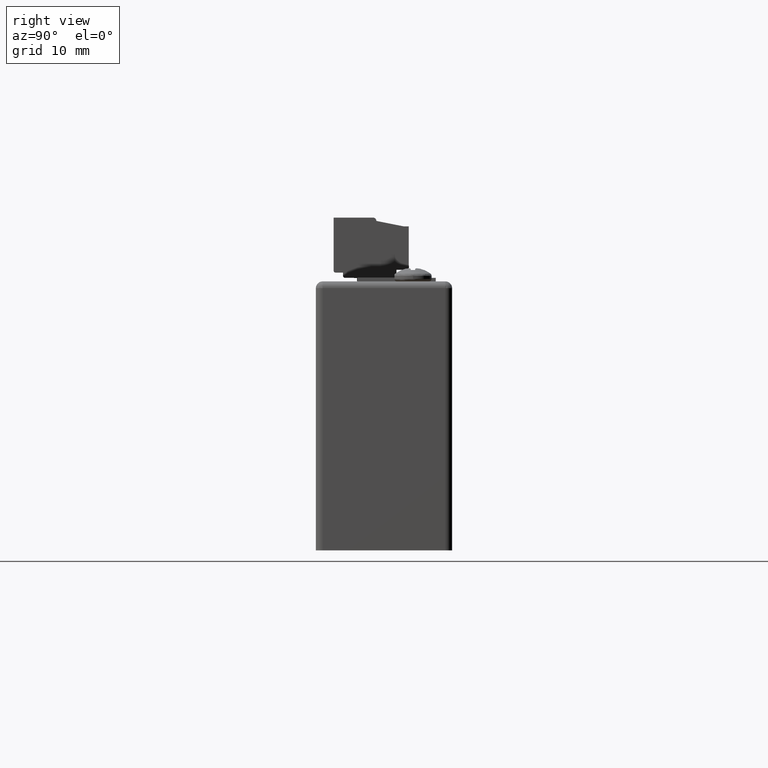
[diagram: clean part render]
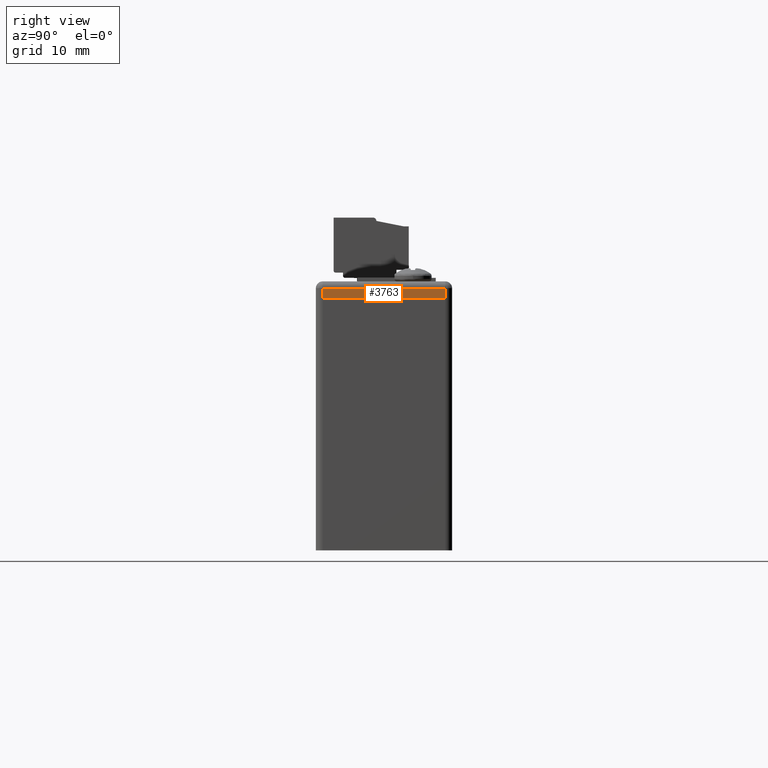
[diagram: same view with one face highlighted and labeled with its STEP entity id]
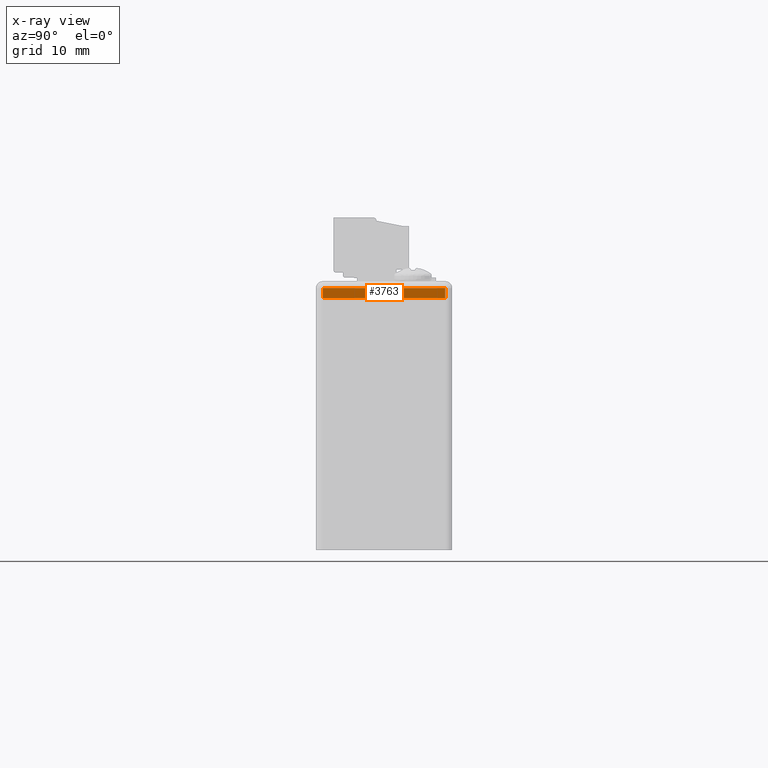
[diagram: x-ray of the same camera — body ghosted, the highlighted face saturated]
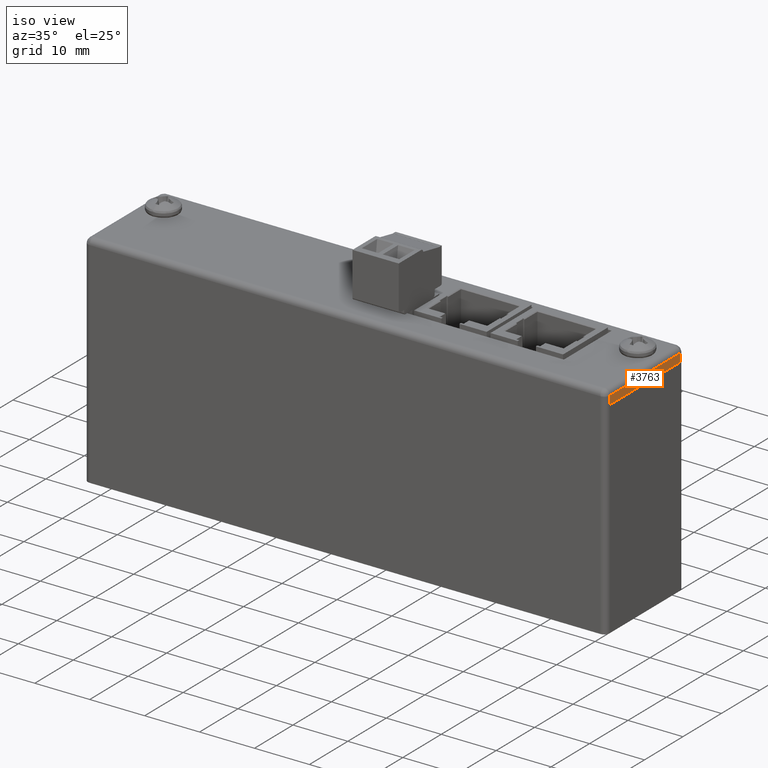
[diagram: same view with one face highlighted and labeled with its STEP entity id]
A machine part, right view. The second image highlights one B-rep face of the part: STEP entity #3763.
The next image is the same camera in x-ray: the body ghosted, the highlighted face saturated — about 0% of this face is hidden behind the body in this view.
A second angle (iso view) of the same face is appended — the face is thin or edge-on in the first view.
In plain terms, the highlighted planar face has unit normal (-1, 0, 0).
Its self-contained STEP definition (entity closure, byte-faithful):
#1261 = CARTESIAN_POINT ( 'NONE',  ( 95.00000000000000000, 1.016000000000000236, 2.540000000000000036 ) ) ;
#1322 = CARTESIAN_POINT ( 'NONE',  ( 95.00000000000000000, 1.016000000000000236, 1.524000000000000243 ) ) ;
#1930 = DIRECTION ( 'NONE',  ( 0.000000000000000000, 1.000000000000000000, -0.000000000000000000 ) ) ;
#2039 = AXIS2_PLACEMENT_3D ( 'NONE', #6430, #2895, #18416 ) ;
#2584 = EDGE_CURVE ( 'NONE', #9830, #17627, #21520, .T. ) ;
#2895 = DIRECTION ( 'NONE',  ( -1.000000000000000000, 0.000000000000000000, 0.000000000000000000 ) ) ;
#3479 = DIRECTION ( 'NONE',  ( -0.000000000000000000, -0.000000000000000000, 1.000000000000000000 ) ) ;
#3763 = ADVANCED_FACE ( 'NONE', ( #8642 ), #12422, .F. ) ;
#4771 = EDGE_CURVE ( 'NONE', #17627, #25176, #21338, .T. ) ;
#5882 = DIRECTION ( 'NONE',  ( -0.000000000000000000, -1.000000000000000000, -0.000000000000000000 ) ) ;
#6388 = ORIENTED_EDGE ( 'NONE', *, *, #4771, .F. ) ;
#6430 = CARTESIAN_POINT ( 'NONE',  ( 95.00000000000000000, 0.000000000000000000, 2.540000000000000036 ) ) ;
#7520 = EDGE_LOOP ( 'NONE', ( #6388, #15930, #10640, #21403 ) ) ;
#7627 = EDGE_CURVE ( 'NONE', #8946, #9830, #16474, .T. ) ;
#7934 = CARTESIAN_POINT ( 'NONE',  ( 95.00000000000000000, 0.000000000000000000, 1.524000000000000243 ) ) ;
#8642 = FACE_OUTER_BOUND ( 'NONE', #7520, .T. ) ;
#8946 = VERTEX_POINT ( 'NONE', #21658 ) ;
#9627 = VECTOR ( 'NONE', #24033, 1000.000000000000000 ) ;
#9830 = VERTEX_POINT ( 'NONE', #22446 ) ;
#10640 = ORIENTED_EDGE ( 'NONE', *, *, #7627, .F. ) ;
#11764 = CARTESIAN_POINT ( 'NONE',  ( 95.00000000000000000, 0.000000000000000000, 0.000000000000000000 ) ) ;
#12084 = VECTOR ( 'NONE', #3479, 1000.000000000000000 ) ;
#12422 = PLANE ( 'NONE',  #2039 ) ;
#13216 = CARTESIAN_POINT ( 'NONE',  ( 95.00000000000000000, 1.016000000000000014, 0.000000000000000000 ) ) ;
#15930 = ORIENTED_EDGE ( 'NONE', *, *, #2584, .F. ) ;
#16219 = CARTESIAN_POINT ( 'NONE',  ( 95.00000000000000000, 19.30400000000000205, 2.540000000000000036 ) ) ;
#16242 = VECTOR ( 'NONE', #1930, 1000.000000000000000 ) ;
#16474 = LINE ( 'NONE', #16219, #9627 ) ;
#17627 = VERTEX_POINT ( 'NONE', #13216 ) ;
#18111 = EDGE_CURVE ( 'NONE', #25176, #8946, #25668, .T. ) ;
#18416 = DIRECTION ( 'NONE',  ( 0.000000000000000000, 0.000000000000000000, 1.000000000000000000 ) ) ;
#20732 = VECTOR ( 'NONE', #5882, 1000.000000000000000 ) ;
#21338 = LINE ( 'NONE', #1261, #12084 ) ;
#21403 = ORIENTED_EDGE ( 'NONE', *, *, #18111, .F. ) ;
#21520 = LINE ( 'NONE', #11764, #20732 ) ;
#21658 = CARTESIAN_POINT ( 'NONE',  ( 95.00000000000000000, 19.30400000000000205, 1.524000000000000243 ) ) ;
#22446 = CARTESIAN_POINT ( 'NONE',  ( 95.00000000000000000, 19.30400000000000205, 0.000000000000000000 ) ) ;
#24033 = DIRECTION ( 'NONE',  ( -0.000000000000000000, -0.000000000000000000, -1.000000000000000000 ) ) ;
#25176 = VERTEX_POINT ( 'NONE', #1322 ) ;
#25668 = LINE ( 'NONE', #7934, #16242 ) ;